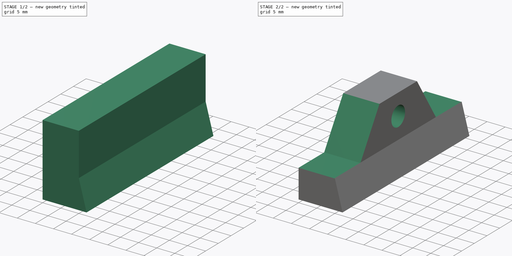
[diagram: build sequence overview — one tinted view per stage of 2, left to right]
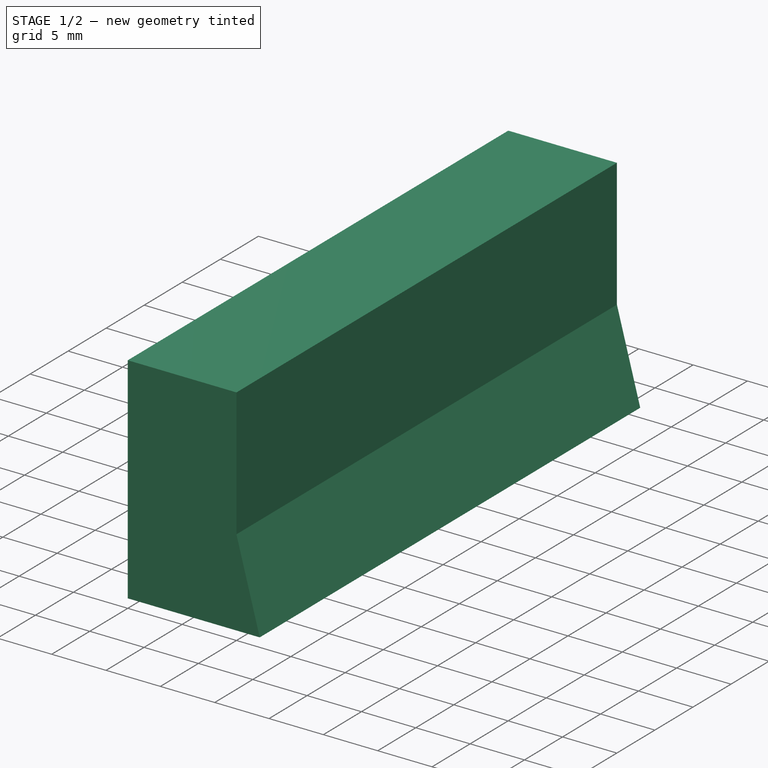
[diagram: stage 1 of 2 — iso view after this stage's code; geometry added in this stage tinted green]
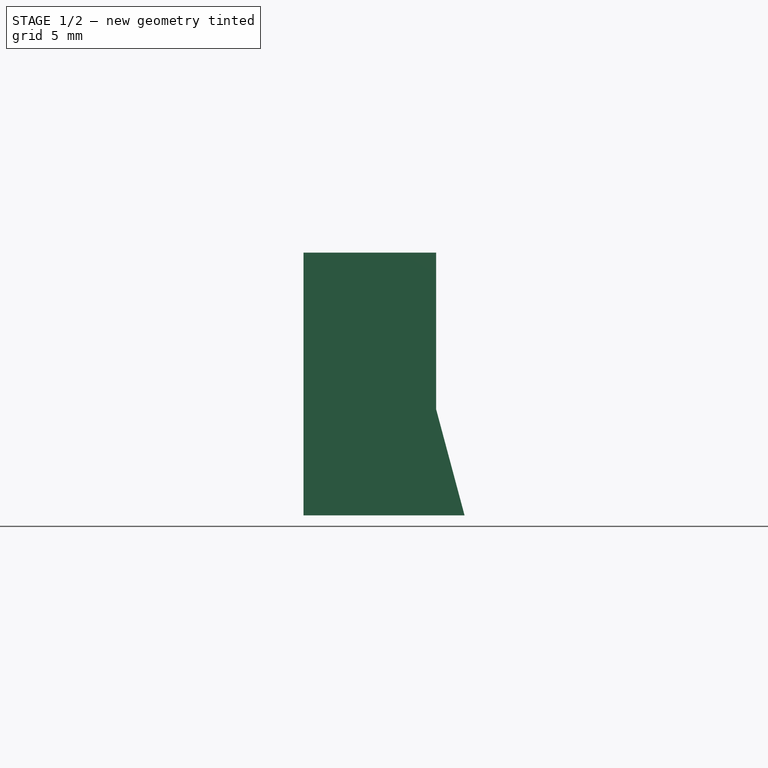
[diagram: stage 1 of 2 — front view after this stage's code; geometry added in this stage tinted green]
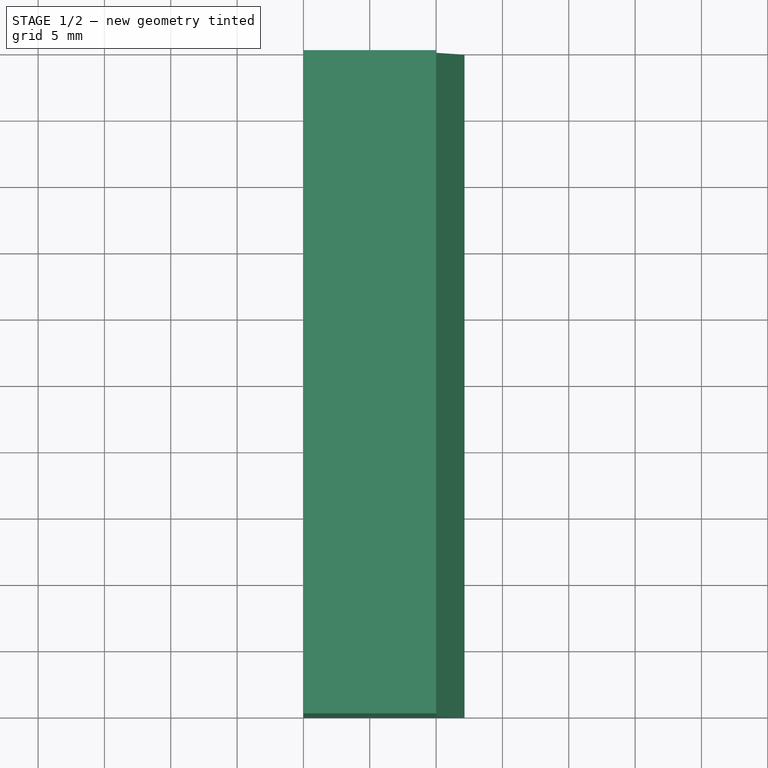
[diagram: stage 1 of 2 — top view after this stage's code; geometry added in this stage tinted green]
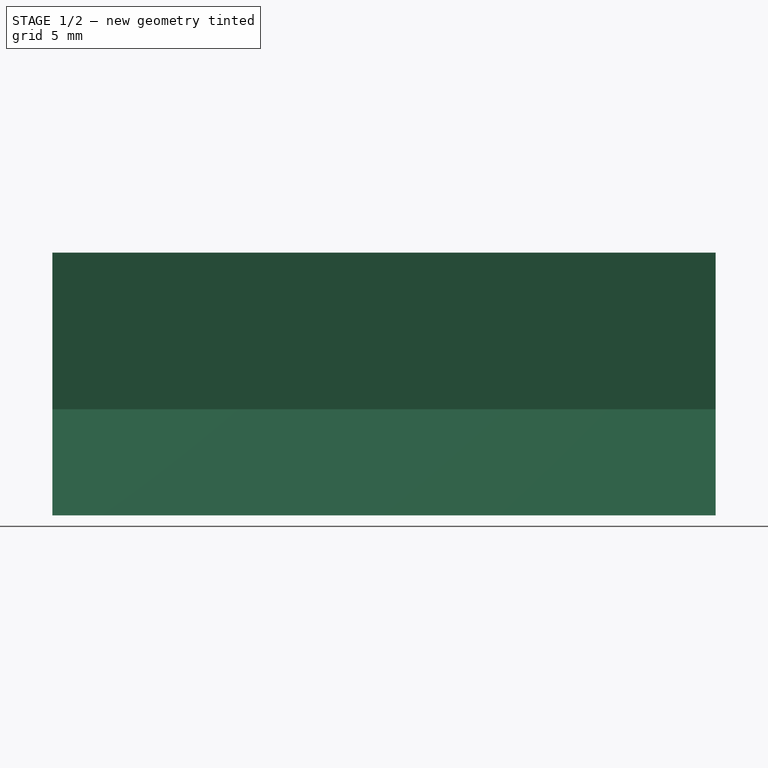
[diagram: stage 1 of 2 — right view after this stage's code; geometry added in this stage tinted green]
FCSTD DOCUMENT  (FreeCAD 1.0R39319 (Git))
Label: vixen_clamp_b
License: Creative Commons Attribution-NonCommercial 4.0
LicenseURL: https://creativecommons.org/licenses/by-nc/4.0/
objects: Sketcher::SketchObject×4, PartDesign::Pocket×3, PartDesign::Pad×1, PartDesign::Body×1
note: 21 computed .brp shape members not serialized (recipe doc carries the construction recipe); baked Part::Feature solids carry a one-line shape summary decoded from their .brp

FEATURE [Sketcher::SketchObject] Sketch
  ArcFitTolerance = 1e-06
  AttachmentSupport = -> [XZ_Plane]
  FullyConstrained = true
  MakeInternals = false
  MapMode = 5
  Placement = pos=(0,0,0) rot=(1,0,0;1.5708rad)
  sketch-geometry (5):
    g0: LineSegment StartX=0 StartY=19.8 StartZ=0 EndX=0 EndY=0 EndZ=0
    g1: LineSegment StartX=0 StartY=0 StartZ=0 EndX=14 EndY=0 EndZ=0
    g2: LineSegment StartX=14 StartY=0 StartZ=0 EndX=14 EndY=19.8 EndZ=0
    g3: LineSegment StartX=14 StartY=19.8 StartZ=0 EndX=0 EndY=19.8 EndZ=0
    g4: GeomPoint [constr] X=7 Y=9.9 Z=0
  constraints (12):
    c: Coincident(g0,g1)
    c: Coincident(g1,g2)
    c: Coincident(g2,g3)
    c: Coincident(g3,g0)
    c: Vertical(g0)
    c: Vertical(g2)
    c: Horizontal(g1)
    c: Horizontal(g3)
    c: Symmetric(g2,g0,g4)
    c: Coincident(g-1,g0)
    c: DistanceY(g2,g2) = 19.8
    c: DistanceX(g3,g3) = 14
FEATURE [PartDesign::Pad] Pad
  Direction = (0,-1,2e-16)
  Length = 50
  Length2 = 10
  Placement = pos=(0,0,0) rot=(1,0,0;1.5708rad)
  Profile = -> Sketch
  ReferenceAxis = -> Sketch [N_Axis]
  Refine = true
  Suppressed = false
  Type = 0
FEATURE [Sketcher::SketchObject] Sketch001
  ArcFitTolerance = 1e-06
  AttachmentSupport = -> [Pad]
  ExternalGeometry = -> [Pad]
  FullyConstrained = true
  MakeInternals = false
  MapMode = 5
  Placement = pos=(0,2.2e-15,0) rot=(-1,0,0;1.5708rad)
  sketch-geometry (5):
    g0: LineSegment StartX=10 StartY=-19.8 StartZ=0 EndX=10 EndY=-8 EndZ=0
    g1: LineSegment StartX=10 StartY=-8 StartZ=0 EndX=12.1436 EndY=0 EndZ=0
    g2: LineSegment StartX=14 StartY=0 StartZ=0 EndX=14 EndY=-19.8 EndZ=0
    g3: LineSegment StartX=14 StartY=-19.8 StartZ=0 EndX=10 EndY=-19.8 EndZ=0
    g4: LineSegment StartX=12.1436 StartY=0 StartZ=0 EndX=14 EndY=0 EndZ=0
  constraints (13):
    c: Vertical(g0)
    c: Coincident(g1,g0)
    c: Coincident(g3,g2)
    c: Horizontal(g3)
    c: Coincident(g3,g0)
    c: Coincident(g2,g-3)
    c: DistanceX(g-3,g0) = 10
    c: Angle(g0,g1) = 2.87979
    c: Coincident(g4,g1)
    c: Horizontal(g4)
    c: Coincident(g-4,g4)
    c: Coincident(g2,g4)
    c: DistanceY(g0,g0) = 11.8
FEATURE [PartDesign::Pocket] Pocket
  BaseFeature = -> Pad
  Direction = (0,-1,-2e-16)
  Length = 5
  Length2 = 5
  Placement = pos=(0,0,0) rot=(1,0,0;1.5708rad)
  Profile = -> Sketch001
  ReferenceAxis = -> Sketch001 [N_Axis]
  Refine = true
  Suppressed = false
  Type = 1
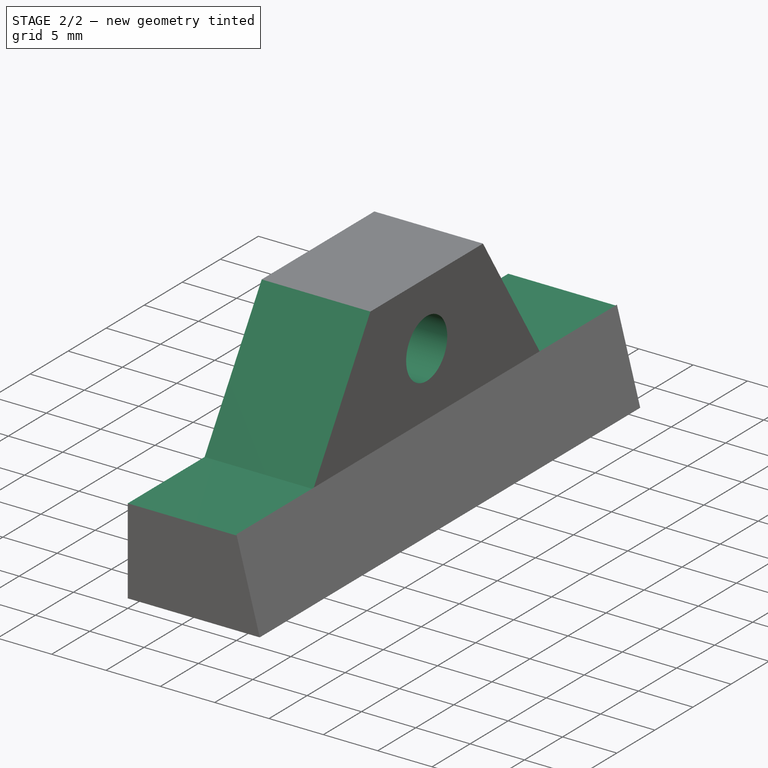
[diagram: stage 2 of 2 — iso view after this stage's code; geometry added in this stage tinted green]
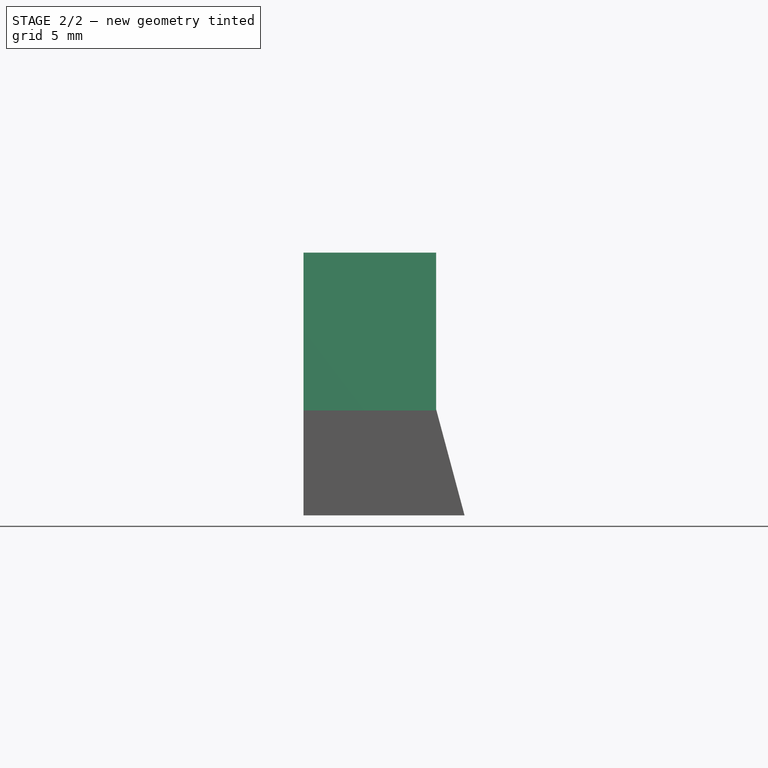
[diagram: stage 2 of 2 — front view after this stage's code; geometry added in this stage tinted green]
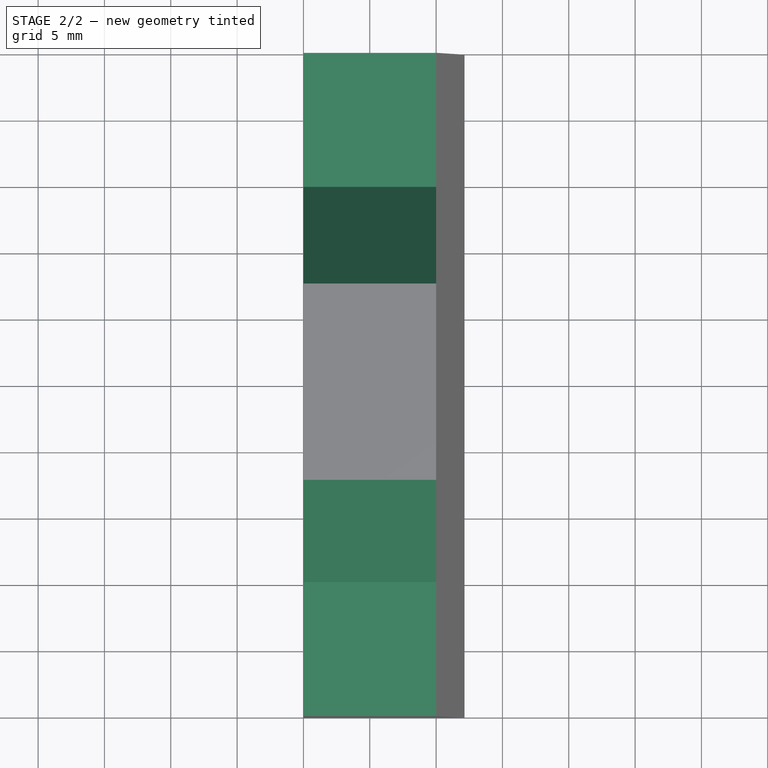
[diagram: stage 2 of 2 — top view after this stage's code; geometry added in this stage tinted green]
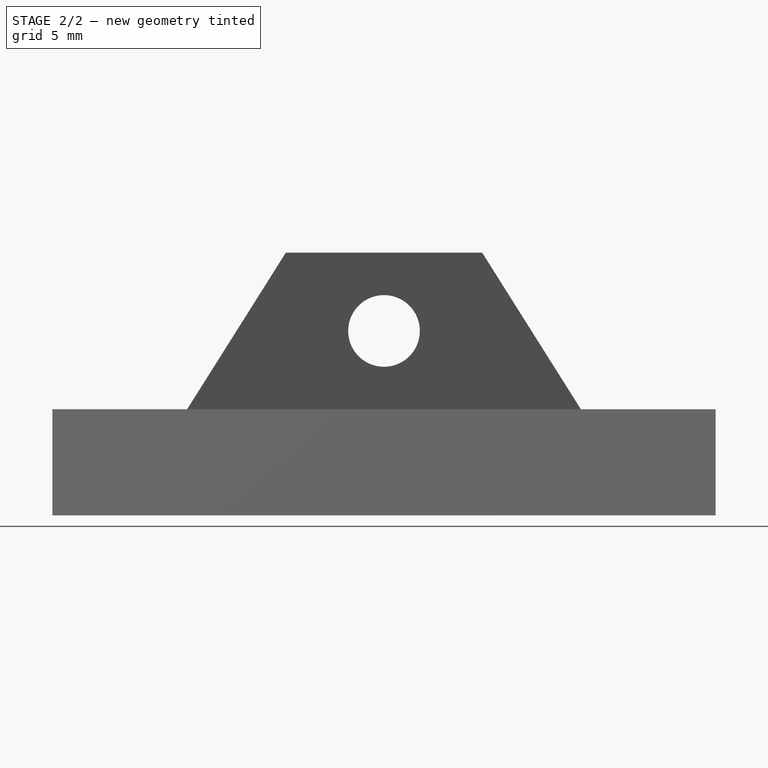
[diagram: stage 2 of 2 — right view after this stage's code; geometry added in this stage tinted green]
FEATURE [Sketcher::SketchObject] Sketch002
  ArcFitTolerance = 1e-06
  AttachmentSupport = -> [Pocket]
  ExternalGeometry = -> [Pocket]
  FullyConstrained = true
  MakeInternals = false
  MapMode = 5
  Placement = pos=(10,0,0) rot=(0.707107,0,0.707107;3.14159rad)
  sketch-geometry (1):
    g0: Circle CenterX=13.9 CenterY=25 CenterZ=0 NormalX=0 NormalY=0 NormalZ=1 AngleXU=0 Radius=2.7
  constraints (2):
    c: Diameter(g0) = 5.4
    c: Symmetric(g-3,g-4,g0)
FEATURE [PartDesign::Pocket] Pocket001
  BaseFeature = -> Pocket
  Direction = (-1,0,2e-16)
  Length = 5
  Length2 = 5
  Placement = pos=(0,0,0) rot=(1,0,0;1.5708rad)
  Profile = -> Sketch002
  ReferenceAxis = -> Sketch002 [N_Axis]
  Refine = true
  Suppressed = false
  Type = 1
FEATURE [Sketcher::SketchObject] Sketch003
  ArcFitTolerance = 1e-06
  AttachmentSupport = -> [Pocket001]
  ExternalGeometry = -> [Pocket001]
  FullyConstrained = true
  MakeInternals = false
  MapMode = 5
  Placement = pos=(10,0,0) rot=(0.707107,0,0.707107;3.14159rad)
  sketch-geometry (8):
    g0: LineSegment StartX=7.9 StartY=39.9 StartZ=0 EndX=19.8 EndY=32.4 EndZ=0
    g1: LineSegment StartX=19.8 StartY=32.4 StartZ=0 EndX=19.8 EndY=50 EndZ=0
    g2: LineSegment StartX=19.8 StartY=50 StartZ=0 EndX=7.9 EndY=50 EndZ=0
    g3: LineSegment StartX=7.9 StartY=50 StartZ=0 EndX=7.9 EndY=39.9 EndZ=0
    g4: LineSegment StartX=7.9 StartY=1.8e-15 StartZ=0 EndX=19.8 EndY=1.8e-15 EndZ=0
    g5: LineSegment StartX=19.8 StartY=1.8e-15 StartZ=0 EndX=19.8 EndY=17.6 EndZ=0
    g6: LineSegment StartX=19.8 StartY=17.6 StartZ=0 EndX=7.9 EndY=10.1 EndZ=0
    g7: LineSegment StartX=7.9 StartY=10.1 StartZ=0 EndX=7.9 EndY=1.8e-15 EndZ=0
  constraints (22):
    c: Coincident(g1,g0)
    c: Vertical(g1)
    c: Coincident(g2,g1)
    c: Coincident(g3,g0)
    c: Vertical(g3)
    c: Coincident(g1,g-4)
    c: Coincident(g5,g4)
    c: Vertical(g5)
    c: Coincident(g6,g5)
    c: Coincident(g7,g6)
    c: Vertical(g7)
    c: Coincident(g-5,g4)
    c: DistanceY(g-3,g0) = 14.9
    c: DistanceY(g6,g-3) = 14.9
    c: DistanceY(g-3,g0) = 7.4
    c: DistanceY(g5,g-3) = 7.4
    c: Coincident(g3,g2)
    c: DistanceX(g2,g-4) = 0.1
    c: Coincident(g7,g4)
    c: DistanceX(g4,g-5) = 0.1
    c: Horizontal(g4)
    c: Horizontal(g2)
FEATURE [PartDesign::Pocket] Pocket002
  BaseFeature = -> Pocket001
  Direction = (-1,0,2e-16)
  Length = 10
  Length2 = 5
  Placement = pos=(0,0,0) rot=(1,0,0;1.5708rad)
  Profile = -> Sketch003
  ReferenceAxis = -> Sketch003 [N_Axis]
  Refine = true
  Suppressed = false
  Type = 0
FEATURE [PartDesign::Body] Body
  AllowCompound = false
  Group = -> [Sketch,Pad,Sketch001,Pocket,Sketch002,Pocket001,Sketch003,Pocket002]
  Origin = -> Origin
  Tip = -> Pocket002
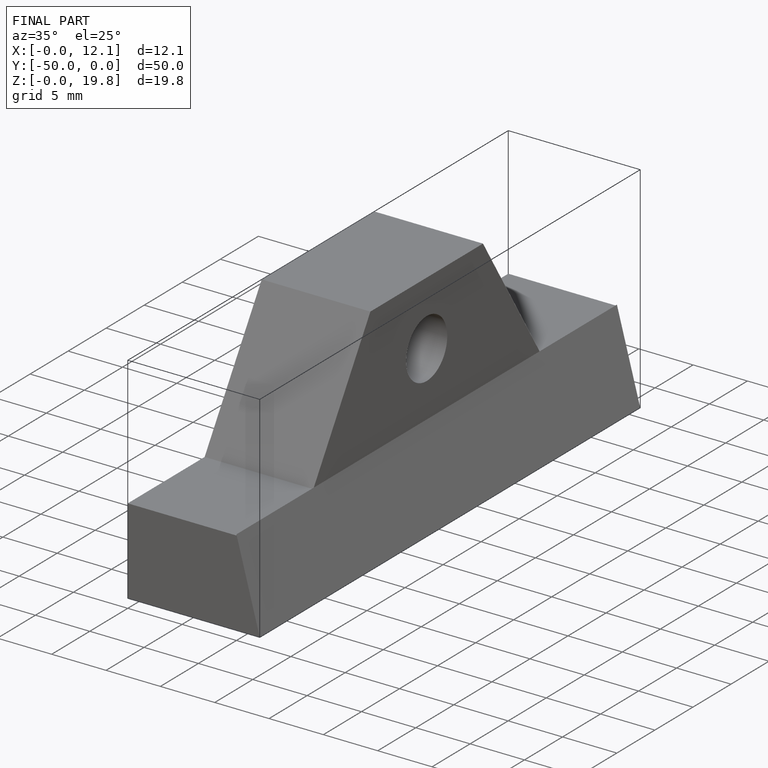
[diagram: finished part — iso view with bounding-box wireframe]
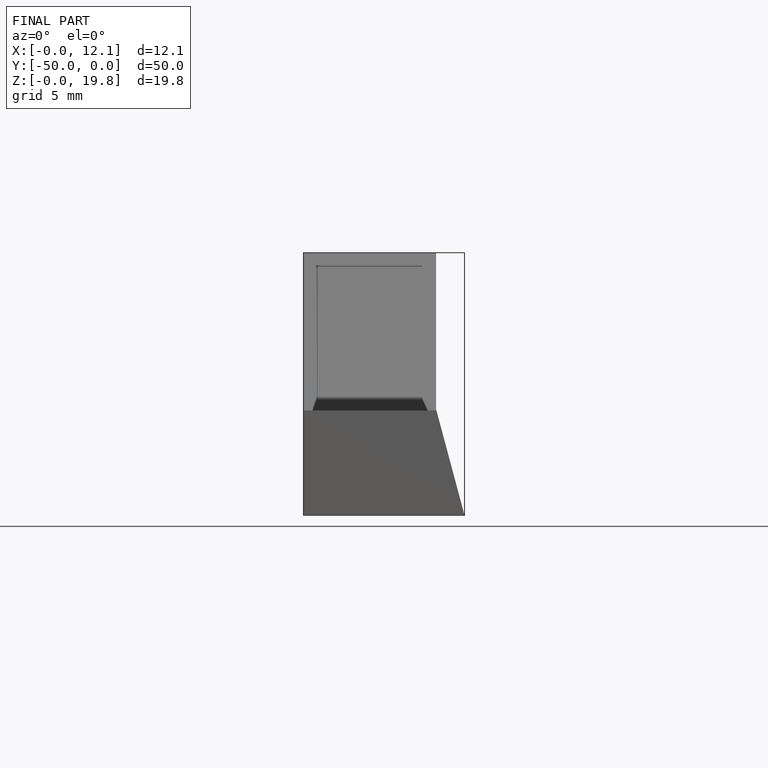
[diagram: finished part — front view with bounding-box wireframe]
